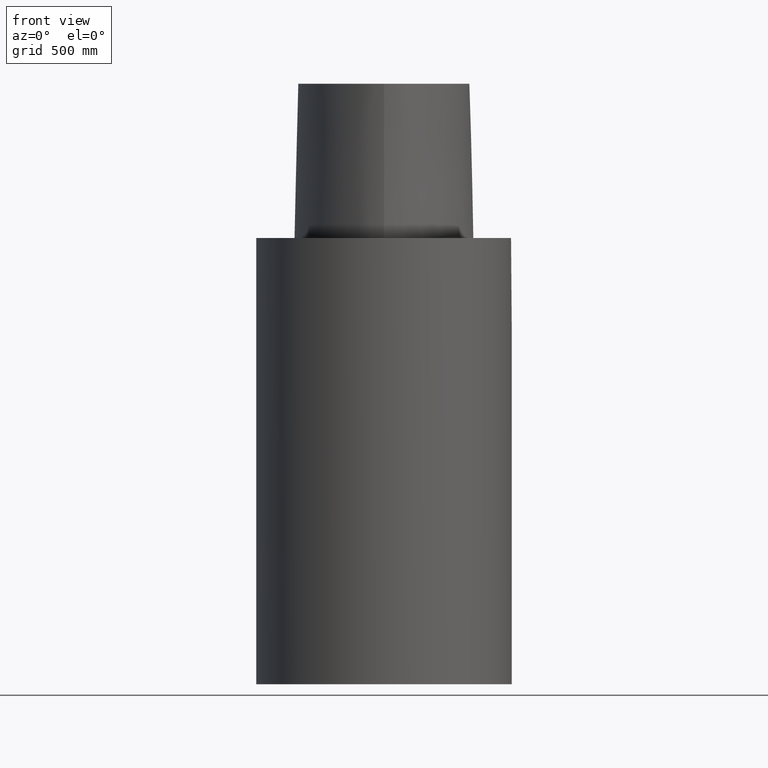
[diagram: clean part render]
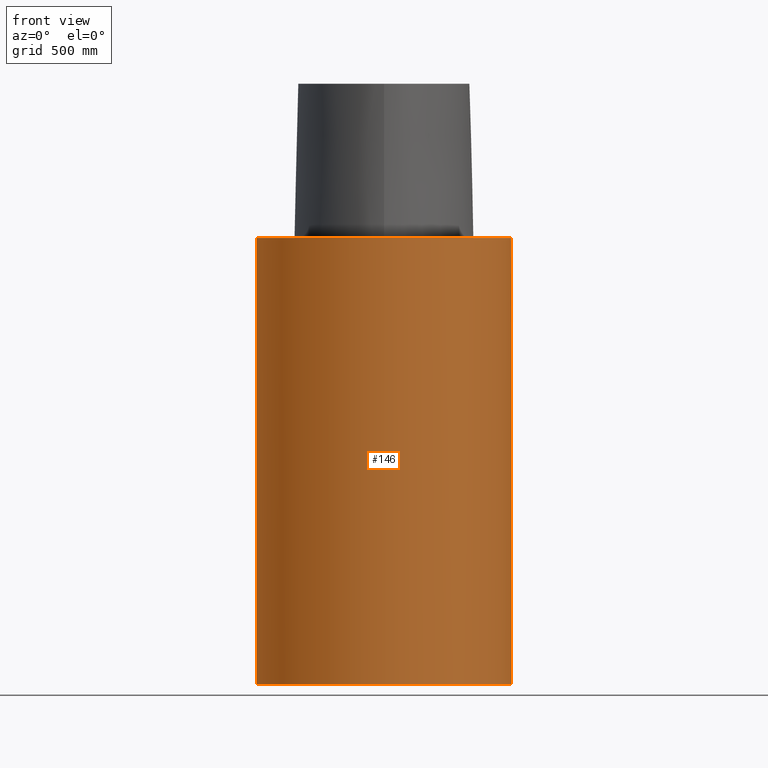
[diagram: same view with one face highlighted and labeled with its STEP entity id]
A machine part, front view. The second image highlights one B-rep face of the part: STEP entity #146.
In plain terms, the highlighted cylindrical surface (bore or boss wall) has radius 800.1 mm, axis along (0, -0, -1).
Its self-contained STEP definition (entity closure, byte-faithful):
#98=EDGE_CURVE('Unnamed[1]',#268,#269,#270,.T.);
#134=EDGE_CURVE('Unnamed[1]',#323,#309,#324,.T.);
#146=ADVANCED_FACE('Unnamed[1]',(#341,#342),#343,.T.);
#170=EDGE_CURVE('Unnamed[1]',#309,#369,#370,.T.);
#174=EDGE_CURVE('Unnamed[1]',#323,#268,#374,.T.);
#195=EDGE_CURVE('Unnamed[1]',#269,#369,#401,.T.);
#234=EDGE_CURVE('Unnamed[1]',#447,#447,#448,.T.);
#268=VERTEX_POINT('',#560);
#269=VERTEX_POINT('',#561);
#270=LINE('',#562,#563);
#309=VERTEX_POINT('',#716);
#323=VERTEX_POINT('',#750);
#324=LINE('',#751,#752);
#341=FACE_BOUND('',#776,.T.);
#342=FACE_BOUND('',#777,.T.);
#343=CYLINDRICAL_SURFACE('',#778,31.5);
#369=VERTEX_POINT('',#835);
#370=LINE('',#836,#837);
#374=CIRCLE('',#844,31.5);
#401=CIRCLE('',#900,31.5);
#447=VERTEX_POINT('',#1003);
#448=CIRCLE('',#1004,31.5);
#560=CARTESIAN_POINT('',(-31.5,8.23872083132104E-014,-110.000000000086));
#561=CARTESIAN_POINT('',(-31.5,4.31687996699442E-015,-24.0));
#562=CARTESIAN_POINT('',(-31.5,7.54067215580758E-014,-224.0));
#563=VECTOR('',#1019,1.0);
#716=CARTESIAN_POINT('',(31.5,-7.62342632469223E-015,-29.9999999999993));
#750=CARTESIAN_POINT('',(31.5,5.68254859509968E-014,-109.999999999992));
#751=CARTESIAN_POINT('',(31.5,4.98449991958564E-014,-224.0));
#752=VECTOR('',#1074,1.0);
#776=EDGE_LOOP('',(#1089,#1090,#1091,#1092,#1093));
#777=EDGE_LOOP('',(#1094));
#778=AXIS2_PLACEMENT_3D('',#1095,#1096,#1097);
#835=CARTESIAN_POINT('',(31.5,6.20914671873299E-014,-24.0));
#836=CARTESIAN_POINT('',(31.5,4.98449991958564E-014,-224.0));
#837=VECTOR('',#1123,1.0);
#844=AXIS2_PLACEMENT_3D('',#1125,#1126,#1127);
#900=AXIS2_PLACEMENT_3D('',#1157,#1158,#1159);
#1003=CARTESIAN_POINT('',(-31.5,5.78645612597124E-015,-3.85763741731416E-015));
#1004=AXIS2_PLACEMENT_3D('',#1217,#1218,#1219);
#1019=DIRECTION('',(-1.22464679914735E-016,6.12323399573677E-017,1.0));
#1074=DIRECTION('',(-1.22464679914735E-016,6.12323399573677E-017,1.0));
#1089=ORIENTED_EDGE('',*,*,#195,.F.);
#1090=ORIENTED_EDGE('',*,*,#98,.F.);
#1091=ORIENTED_EDGE('',*,*,#174,.F.);
#1092=ORIENTED_EDGE('',*,*,#134,.T.);
#1093=ORIENTED_EDGE('',*,*,#170,.T.);
#1094=ORIENTED_EDGE('',*,*,#234,.T.);
#1095=CARTESIAN_POINT('',(1.46957615897682E-015,-7.34788079488412E-016,-12.0));
#1096=DIRECTION('',(1.22464679914735E-016,-6.12323399573677E-017,-1.0));
#1097=DIRECTION('',(-1.0,1.83697019872103E-016,-1.22464679914735E-016));
#1123=DIRECTION('',(-1.22464679914735E-016,6.12323399573677E-017,1.0));
#1125=CARTESIAN_POINT('',(7.53338801361045E-015,7.85295708958969E-014,-110.000000000077));
#1126=DIRECTION('',(1.50533619611409E-012,-6.12323399576442E-017,-1.0));
#1127=DIRECTION('',(3.06161699786838E-016,1.0,-6.12323399571833E-017));
#1157=CARTESIAN_POINT('',(2.93915231795365E-015,-1.46957615897682E-015,-24.0));
#1158=DIRECTION('',(1.22464679914735E-016,-6.12323399573677E-017,-1.0));
#1159=DIRECTION('',(-1.0,1.83697019872103E-016,-1.22464679914735E-016));
#1217=CARTESIAN_POINT('',(0.0,0.0,0.0));
#1218=DIRECTION('',(1.22464679914735E-016,-6.12323399573677E-017,-1.0));
#1219=DIRECTION('',(-1.0,1.83697019872103E-016,-1.22464679914735E-016));